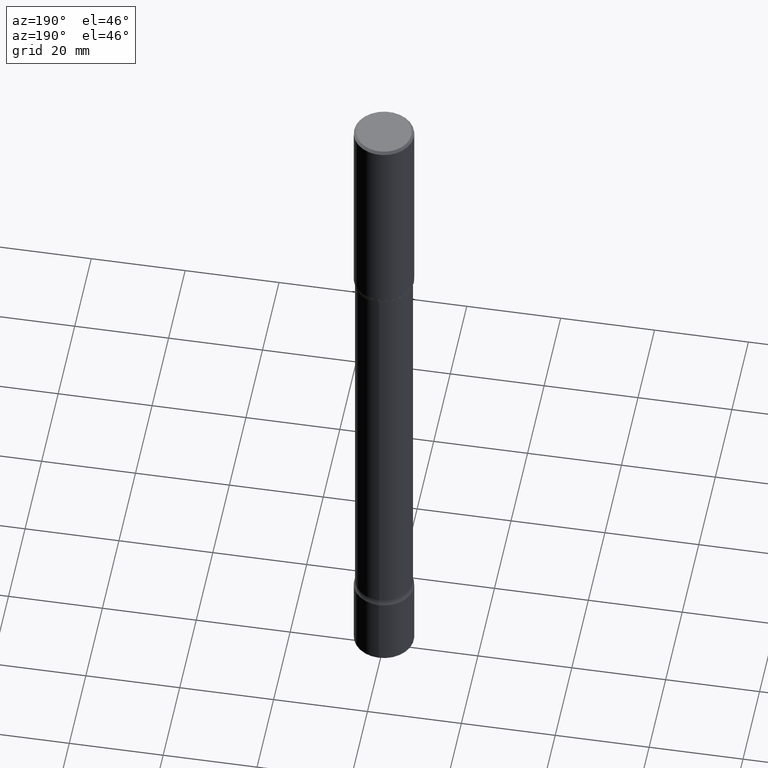
[diagram: clean part render]
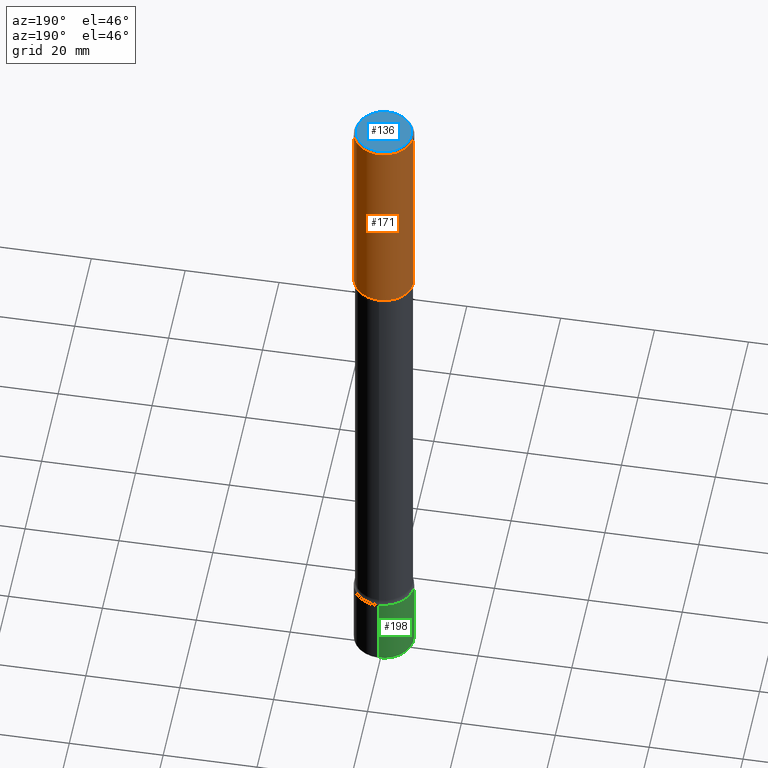
[diagram: same view with three faces highlighted in distinct colors, each labeled with its STEP entity id]
A machine part, auxiliary view with three faces highlighted in distinct colors.
Their STEP definitions:

[orange] entity #171 — the highlighted cylindrical surface (edge-blend (fillet) strip) has radius 6.35 mm, axis along (-0, 0, 1).
#18 = DIRECTION ( 'NONE',  ( -2.445468806185136597E-29, 3.491481338843145583E-15, 1.000000000000000000 ) ) ;
#22 = VERTEX_POINT ( 'NONE', #40 ) ;
#40 = CARTESIAN_POINT ( 'NONE',  ( 0.2499999999999997224, -1.784954126219743822E-15, -0.02000000000000000042 ) ) ;
#44 = CARTESIAN_POINT ( 'NONE',  ( 0.2500000000000000000, -7.855833012397075293E-15, -1.750000000000001332 ) ) ;
#61 = CARTESIAN_POINT ( 'NONE',  ( 4.890937612370273159E-31, -6.982962677686291609E-17, -0.02000000000000000042 ) ) ;
#64 = DIRECTION ( 'NONE',  ( -2.445468806185136877E-29, 3.491481338843145188E-15, 1.000000000000000000 ) ) ;
#73 = ORIENTED_EDGE ( 'NONE', *, *, #271, .T. ) ;
#88 = DIRECTION ( 'NONE',  ( -2.445468806185136597E-29, 3.491481338843145583E-15, 1.000000000000000000 ) ) ;
#92 = LINE ( 'NONE', #207, #445 ) ;
#120 = LINE ( 'NONE', #358, #272 ) ;
#122 = DIRECTION ( 'NONE',  ( -2.445468806185136877E-29, 3.491481338843145188E-15, 1.000000000000000000 ) ) ;
#132 = CIRCLE ( 'NONE', #394, 0.2499999999999997224 ) ;
#137 = VERTEX_POINT ( 'NONE', #44 ) ;
#157 = CIRCLE ( 'NONE', #409, 0.2500000000000000000 ) ;
#171 = ADVANCED_FACE ( 'NONE', ( #389 ), #479, .T. ) ;
#182 = ORIENTED_EDGE ( 'NONE', *, *, #359, .F. ) ;
#204 = DIRECTION ( 'NONE',  ( 1.000000000000000000, -6.982962677686266711E-15, 0.000000000000000000 ) ) ;
#207 = CARTESIAN_POINT ( 'NONE',  ( 0.2499999999999998612, -1.745740669421565692E-15, 1.219044193948983248E-29 ) ) ;
#235 = CARTESIAN_POINT ( 'NONE',  ( -0.2499999999999999722, -1.313604145475934309E-15, -1.750000000000001332 ) ) ;
#247 = DIRECTION ( 'NONE',  ( -2.445468806185136597E-29, 3.491481338843145583E-15, 1.000000000000000000 ) ) ;
#271 = EDGE_CURVE ( 'NONE', #275, #297, #120, .T. ) ;
#272 = VECTOR ( 'NONE', #122, 39.37007874015748143 ) ;
#275 = VERTEX_POINT ( 'NONE', #235 ) ;
#297 = VERTEX_POINT ( 'NONE', #318 ) ;
#318 = CARTESIAN_POINT ( 'NONE',  ( -0.2499999999999997224, 1.675911042644701999E-15, -0.02000000000000000042 ) ) ;
#337 = EDGE_CURVE ( 'NONE', #137, #275, #157, .T. ) ;
#358 = CARTESIAN_POINT ( 'NONE',  ( -0.2499999999999998612, 1.776356839400249479E-15, -1.229733772563725745E-29 ) ) ;
#359 = EDGE_CURVE ( 'NONE', #137, #22, #92, .T. ) ;
#387 = ORIENTED_EDGE ( 'NONE', *, *, #439, .F. ) ;
#389 = FACE_OUTER_BOUND ( 'NONE', #448, .T. ) ;
#394 = AXIS2_PLACEMENT_3D ( 'NONE', #61, #88, #204 ) ;
#409 = AXIS2_PLACEMENT_3D ( 'NONE', #442, #247, #449 ) ;
#433 = CARTESIAN_POINT ( 'NONE',  ( 0.000000000000000000, 0.000000000000000000, 0.000000000000000000 ) ) ;
#436 = AXIS2_PLACEMENT_3D ( 'NONE', #433, #18, #437 ) ;
#437 = DIRECTION ( 'NONE',  ( 1.000000000000000000, -6.982962677686266711E-15, 4.876176775795935793E-29 ) ) ;
#438 = ORIENTED_EDGE ( 'NONE', *, *, #337, .T. ) ;
#439 = EDGE_CURVE ( 'NONE', #22, #297, #132, .T. ) ;
#442 = CARTESIAN_POINT ( 'NONE',  ( 4.279570410823991847E-29, -6.110092342975509404E-15, -1.750000000000001332 ) ) ;
#445 = VECTOR ( 'NONE', #64, 39.37007874015748143 ) ;
#448 = EDGE_LOOP ( 'NONE', ( #438, #73, #387, #182 ) ) ;
#449 = DIRECTION ( 'NONE',  ( 1.000000000000000000, -6.982962677686266711E-15, 0.000000000000000000 ) ) ;
#479 = CYLINDRICAL_SURFACE ( 'NONE', #436, 0.2499999999999998612 ) ;

[blue] entity #136 — the highlighted planar face has unit normal (0, -0, -1).
#28 = CARTESIAN_POINT ( 'NONE',  ( -4.175405657340879278E-46, 5.961372681521788801E-32, 1.707404996040164512E-17 ) ) ;
#30 = EDGE_CURVE ( 'NONE', #127, #262, #281, .T. ) ;
#36 = EDGE_CURVE ( 'NONE', #262, #127, #70, .T. ) ;
#70 = CIRCLE ( 'NONE', #503, 0.2299999999999997324 ) ;
#71 = AXIS2_PLACEMENT_3D ( 'NONE', #290, #175, #452 ) ;
#78 = PLANE ( 'NONE',  #71 ) ;
#91 = ORIENTED_EDGE ( 'NONE', *, *, #36, .T. ) ;
#105 = ORIENTED_EDGE ( 'NONE', *, *, #30, .T. ) ;
#127 = VERTEX_POINT ( 'NONE', #224 ) ;
#136 = ADVANCED_FACE ( 'NONE', ( #384 ), #78, .F. ) ;
#139 = DIRECTION ( 'NONE',  ( -2.445468806185136597E-29, 3.491481338843145583E-15, 1.000000000000000000 ) ) ;
#142 = DIRECTION ( 'NONE',  ( 1.000000000000000000, -6.982962677686266711E-15, 4.875813741439105379E-29 ) ) ;
#160 = CARTESIAN_POINT ( 'NONE',  ( 0.2299999999999997324, -1.681434332853597236E-15, 1.707404996041313907E-17 ) ) ;
#175 = DIRECTION ( 'NONE',  ( 2.438088387897960049E-29, -3.491481338843145188E-15, -1.000000000000000000 ) ) ;
#224 = CARTESIAN_POINT ( 'NONE',  ( -0.2299999999999997324, 1.640996229256270744E-15, 1.707404996039028983E-17 ) ) ;
#262 = VERTEX_POINT ( 'NONE', #160 ) ;
#265 = DIRECTION ( 'NONE',  ( 1.000000000000000000, -6.982962677686266711E-15, 4.875813741439105379E-29 ) ) ;
#281 = CIRCLE ( 'NONE', #434, 0.2299999999999997324 ) ;
#290 = CARTESIAN_POINT ( 'NONE',  ( 1.606081415867839292E-15, 0.2299999999999997324, -7.945036829537217511E-16 ) ) ;
#347 = EDGE_LOOP ( 'NONE', ( #105, #91 ) ) ;
#349 = DIRECTION ( 'NONE',  ( -2.445468806185136597E-29, 3.491481338843145583E-15, 1.000000000000000000 ) ) ;
#384 = FACE_OUTER_BOUND ( 'NONE', #347, .T. ) ;
#428 = CARTESIAN_POINT ( 'NONE',  ( -4.175405657340879278E-46, 5.961372681521788801E-32, 1.707404996040164512E-17 ) ) ;
#434 = AXIS2_PLACEMENT_3D ( 'NONE', #428, #349, #265 ) ;
#452 = DIRECTION ( 'NONE',  ( -1.000000000000000000, 6.982962677686265922E-15, -4.876176775795935793E-29 ) ) ;
#503 = AXIS2_PLACEMENT_3D ( 'NONE', #28, #139, #142 ) ;

[green] entity #198 — the highlighted cylindrical surface (edge-blend (fillet) strip) has radius 6.35 mm, axis along (-0, 0, 1).
#32 = DIRECTION ( 'NONE',  ( -2.445167468974182699E-29, 3.491912870880280272E-15, 1.000000000000000000 ) ) ;
#34 = VECTOR ( 'NONE', #32, 39.37007874015748143 ) ;
#50 = CARTESIAN_POINT ( 'NONE',  ( 1.776356839400388910E-15, 0.2499999999999789613, -6.000000000000001776 ) ) ;
#55 = CARTESIAN_POINT ( 'NONE',  ( 1.776356839400396798E-15, 0.2499999999999811262, -5.375000000000002665 ) ) ;
#60 = DIRECTION ( 'NONE',  ( -6.982962677686265922E-15, -1.000000000000000000, 4.370956789862822727E-15 ) ) ;
#112 = EDGE_CURVE ( 'NONE', #205, #488, #485, .T. ) ;
#118 = LINE ( 'NONE', #167, #184 ) ;
#126 = DIRECTION ( 'NONE',  ( -2.445167468974182699E-29, 3.491912870880280667E-15, 1.000000000000000000 ) ) ;
#135 = CARTESIAN_POINT ( 'NONE',  ( -1.745740669421433952E-15, -0.2500000000000186517, -5.375000000000000888 ) ) ;
#140 = CARTESIAN_POINT ( 'NONE',  ( -1.745740669421419161E-15, -0.2500000000000208722, -5.999999999999999112 ) ) ;
#155 = ORIENTED_EDGE ( 'NONE', *, *, #392, .F. ) ;
#167 = CARTESIAN_POINT ( 'NONE',  ( -1.745740669421565692E-15, -0.2499999999999998890, 8.729782177200697723E-16 ) ) ;
#173 = VERTEX_POINT ( 'NONE', #50 ) ;
#174 = CARTESIAN_POINT ( 'NONE',  ( 1.776356839400249479E-15, 0.2499999999999998890, -8.729782177200697723E-16 ) ) ;
#184 = VECTOR ( 'NONE', #200, 39.37007874015748143 ) ;
#195 = DIRECTION ( 'NONE',  ( -6.982962677686265922E-15, -1.000000000000000000, 3.491912870880280667E-15 ) ) ;
#198 = ADVANCED_FACE ( 'NONE', ( #399 ), #472, .T. ) ;
#200 = DIRECTION ( 'NONE',  ( -2.445167468974182699E-29, 3.491912870880280272E-15, 1.000000000000000000 ) ) ;
#205 = VERTEX_POINT ( 'NONE', #55 ) ;
#206 = EDGE_CURVE ( 'NONE', #408, #488, #118, .T. ) ;
#226 = EDGE_LOOP ( 'NONE', ( #155, #238, #450, #319 ) ) ;
#238 = ORIENTED_EDGE ( 'NONE', *, *, #419, .T. ) ;
#240 = CIRCLE ( 'NONE', #293, 0.2499999999999999167 ) ;
#252 = CARTESIAN_POINT ( 'NONE',  ( 1.314277514573623709E-28, -1.876903168098151268E-14, -5.375000000000001776 ) ) ;
#254 = AXIS2_PLACEMENT_3D ( 'NONE', #252, #307, #421 ) ;
#286 = LINE ( 'NONE', #174, #34 ) ;
#293 = AXIS2_PLACEMENT_3D ( 'NONE', #451, #407, #60 ) ;
#307 = DIRECTION ( 'NONE',  ( -2.445167468974182699E-29, 3.491912870880280667E-15, 1.000000000000000000 ) ) ;
#319 = ORIENTED_EDGE ( 'NONE', *, *, #112, .F. ) ;
#392 = EDGE_CURVE ( 'NONE', #173, #205, #286, .T. ) ;
#399 = FACE_OUTER_BOUND ( 'NONE', #226, .T. ) ;
#407 = DIRECTION ( 'NONE',  ( -2.445167468974182699E-29, 3.491912870880280667E-15, 1.000000000000000000 ) ) ;
#408 = VERTEX_POINT ( 'NONE', #140 ) ;
#419 = EDGE_CURVE ( 'NONE', #173, #408, #240, .T. ) ;
#421 = DIRECTION ( 'NONE',  ( -6.982962677686265922E-15, -1.000000000000000000, 4.370956789862823516E-15 ) ) ;
#431 = CARTESIAN_POINT ( 'NONE',  ( 0.000000000000000000, 0.000000000000000000, 0.000000000000000000 ) ) ;
#450 = ORIENTED_EDGE ( 'NONE', *, *, #206, .T. ) ;
#451 = CARTESIAN_POINT ( 'NONE',  ( 1.467100481384509675E-28, -2.095147722528168321E-14, -6.000000000000000888 ) ) ;
#454 = AXIS2_PLACEMENT_3D ( 'NONE', #431, #126, #195 ) ;
#472 = CYLINDRICAL_SURFACE ( 'NONE', #454, 0.2499999999999998890 ) ;
#485 = CIRCLE ( 'NONE', #254, 0.2499999999999998612 ) ;
#488 = VERTEX_POINT ( 'NONE', #135 ) ;